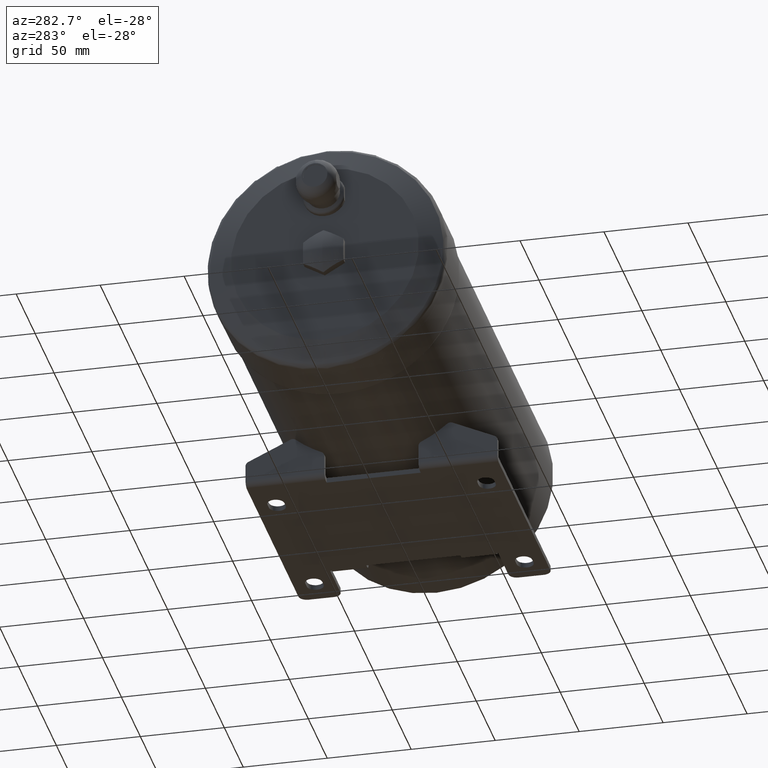
[diagram: clean part render]
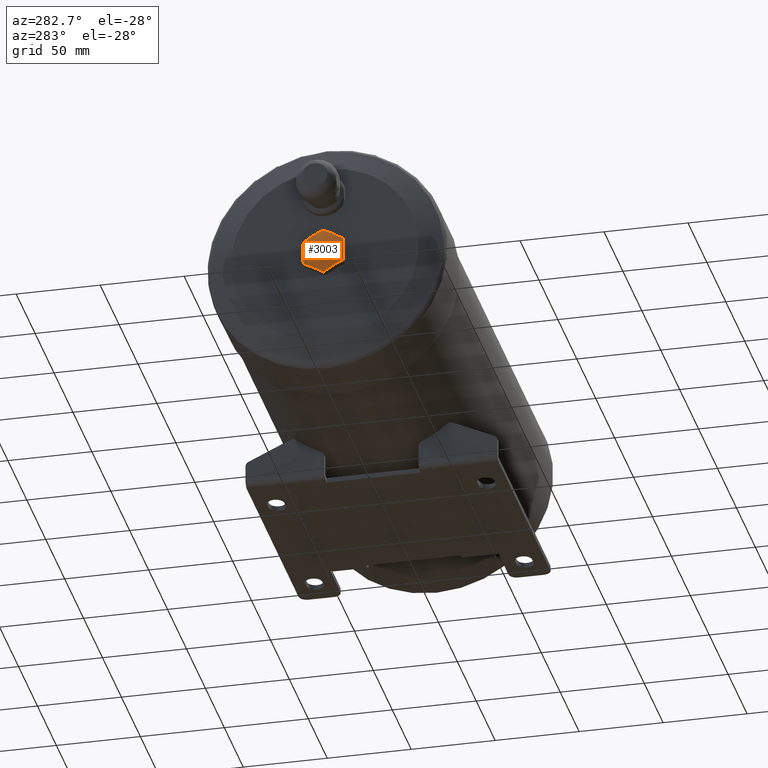
[diagram: same view with one face highlighted and labeled with its STEP entity id]
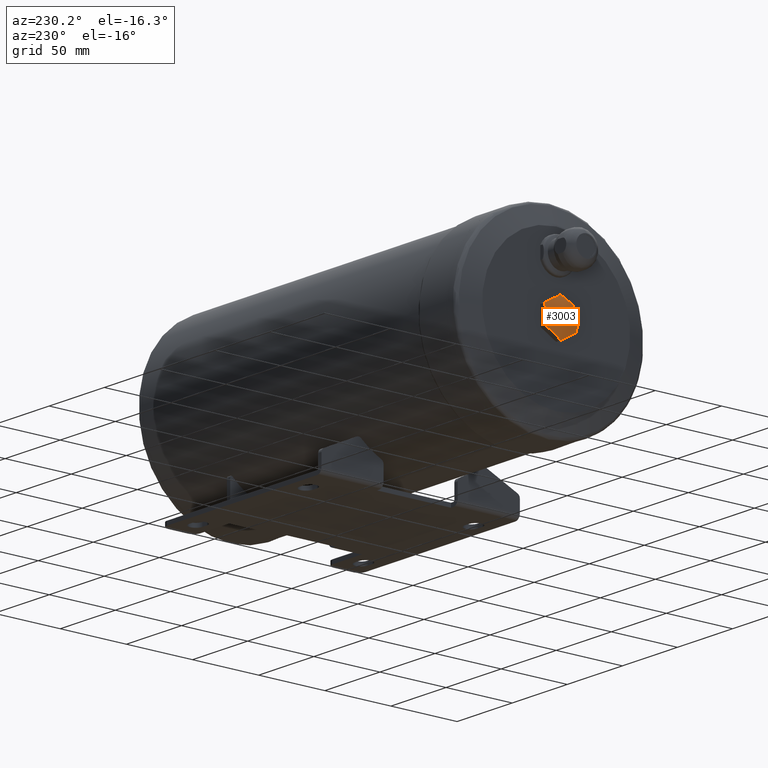
[diagram: same view with one face highlighted and labeled with its STEP entity id]
A machine part, auxiliary view. The second image highlights one B-rep face of the part: STEP entity #3003.
A second angle (auxiliary view) of the same face is appended — the face is thin or edge-on in the first view.
In plain terms, the highlighted spherical surface has radius 30 mm.
Its self-contained STEP definition (entity closure, byte-faithful):
#36=SPHERICAL_SURFACE('',#3238,30.);
#603=ORIENTED_EDGE('',*,*,#1146,.F.);
#604=ORIENTED_EDGE('',*,*,#1143,.F.);
#605=ORIENTED_EDGE('',*,*,#1140,.F.);
#606=ORIENTED_EDGE('',*,*,#1137,.F.);
#607=ORIENTED_EDGE('',*,*,#1152,.F.);
#608=ORIENTED_EDGE('',*,*,#1149,.F.);
#1137=EDGE_CURVE('',#1448,#1450,#1673,.T.);
#1140=EDGE_CURVE('',#1450,#1452,#1674,.T.);
#1143=EDGE_CURVE('',#1452,#1454,#1675,.T.);
#1146=EDGE_CURVE('',#1454,#1456,#1676,.T.);
#1149=EDGE_CURVE('',#1456,#1458,#1677,.T.);
#1152=EDGE_CURVE('',#1458,#1448,#1678,.T.);
#1448=VERTEX_POINT('',#4371);
#1450=VERTEX_POINT('',#4374);
#1452=VERTEX_POINT('',#4380);
#1454=VERTEX_POINT('',#4386);
#1456=VERTEX_POINT('',#4392);
#1458=VERTEX_POINT('',#4398);
#1673=CIRCLE('',#3159,27.495454169735);
#1674=CIRCLE('',#3161,27.495454169735);
#1675=CIRCLE('',#3163,27.495454169735);
#1676=CIRCLE('',#3165,27.495454169735);
#1677=CIRCLE('',#3167,27.495454169735);
#1678=CIRCLE('',#3169,27.495454169735);
#1892=EDGE_LOOP('',(#603,#604,#605,#606,#607,#608));
#2124=FACE_BOUND('',#1892,.T.);
#3003=ADVANCED_FACE('',(#2124),#36,.T.);
#3159=AXIS2_PLACEMENT_3D('',#4373,#3516,#3517);
#3161=AXIS2_PLACEMENT_3D('',#4379,#3522,#3523);
#3163=AXIS2_PLACEMENT_3D('',#4385,#3528,#3529);
#3165=AXIS2_PLACEMENT_3D('',#4391,#3534,#3535);
#3167=AXIS2_PLACEMENT_3D('',#4397,#3540,#3541);
#3169=AXIS2_PLACEMENT_3D('',#4403,#3546,#3547);
#3238=AXIS2_PLACEMENT_3D('',#4513,#3687,#3688);
#3516=DIRECTION('',(0.,0.5,-0.866025403784439));
#3517=DIRECTION('',(0.,0.866025403784439,0.5));
#3522=DIRECTION('',(0.,1.,0.));
#3523=DIRECTION('',(0.,0.,1.));
#3528=DIRECTION('',(0.,0.5,0.866025403784438));
#3529=DIRECTION('',(0.,-0.866025403784438,0.5));
#3534=DIRECTION('',(0.,-0.5,0.866025403784439));
#3535=DIRECTION('',(0.,-0.866025403784439,-0.5));
#3540=DIRECTION('',(0.,-1.,1.00154306582477E-15));
#3541=DIRECTION('',(0.,-1.00154306582477E-15,-1.));
#3546=DIRECTION('',(0.,-0.499999999999998,-0.86602540378444));
#3547=DIRECTION('',(0.,0.86602540378444,-0.499999999999998));
#3687=DIRECTION('',(-1.,0.,0.));
#3688=DIRECTION('',(0.,0.,-1.));
#4371=CARTESIAN_POINT('',(-304.,1.05411445353847E-13,-13.856406460551));
#4373=CARTESIAN_POINT('',(-277.3917306087,6.,-10.3923048454133));
#4374=CARTESIAN_POINT('',(-304.,12.,-6.92820323027551));
#4379=CARTESIAN_POINT('',(-277.3917306087,12.,0.));
#4380=CARTESIAN_POINT('',(-304.,12.,6.92820323027547));
#4385=CARTESIAN_POINT('',(-277.3917306087,6.,10.3923048454133));
#4386=CARTESIAN_POINT('',(-304.,0.,13.856406460551));
#4391=CARTESIAN_POINT('',(-277.3917306087,-6.,10.3923048454133));
#4392=CARTESIAN_POINT('',(-304.,-12.,6.92820323027556));
#4397=CARTESIAN_POINT('',(-277.3917306087,-12.,1.20185167898973E-14));
#4398=CARTESIAN_POINT('',(-304.,-12.0000000000001,-6.92820323027548));
#4403=CARTESIAN_POINT('',(-277.3917306087,-5.99999999999997,-10.3923048454133));
#4513=CARTESIAN_POINT('',(-277.3917306087,0.,0.));